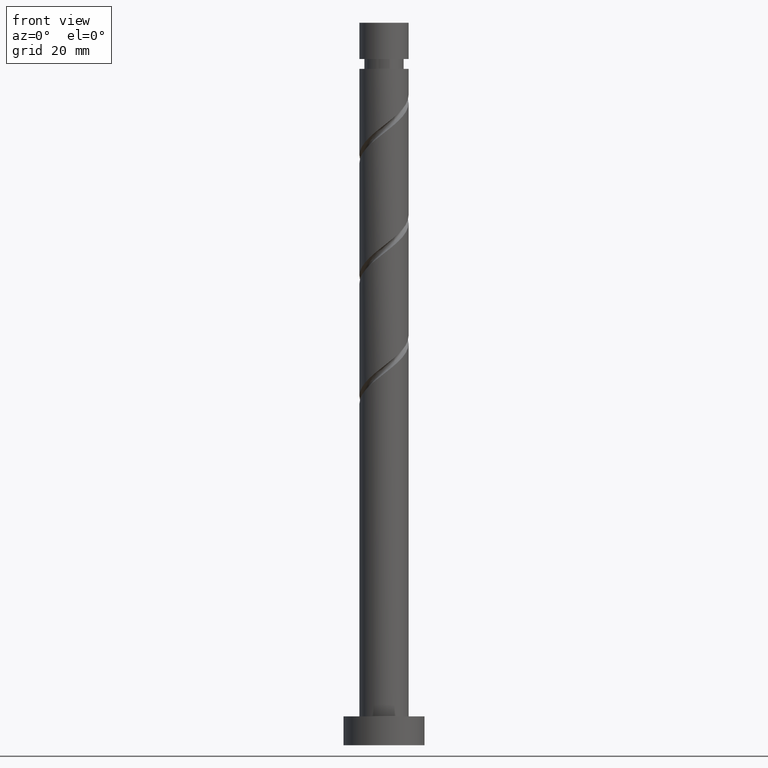
[diagram: clean part render]
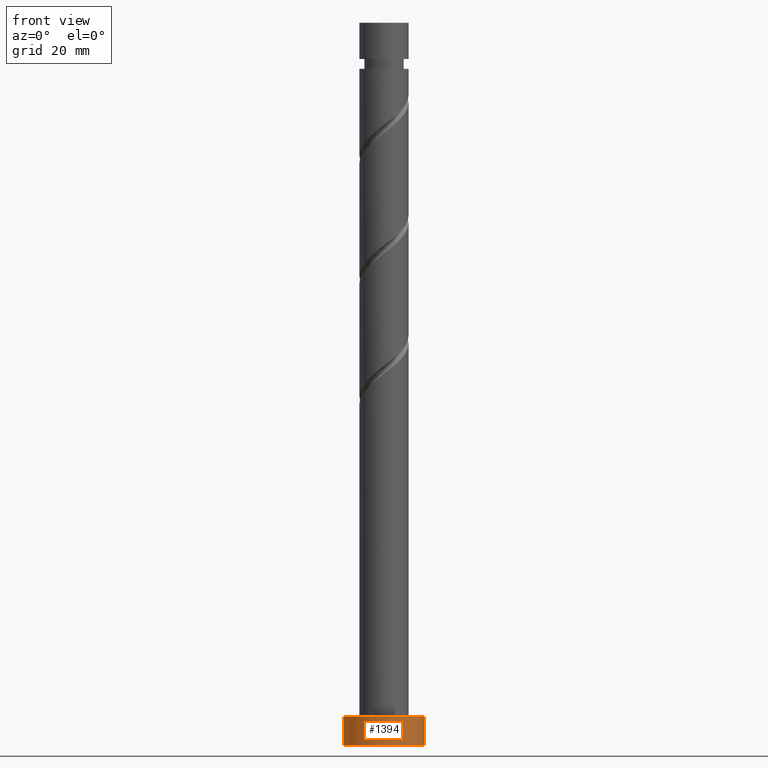
[diagram: same view with one face highlighted and labeled with its STEP entity id]
A machine part, front view. The second image highlights one B-rep face of the part: STEP entity #1394.
In plain terms, the highlighted cylindrical surface (partial cylindrical patch) has radius 7 mm, axis along (-0, -0, -1).
Its self-contained STEP definition (entity closure, byte-faithful):
#2 = VERTEX_POINT ( 'NONE', #667 ) ;
#4 = EDGE_CURVE ( 'NONE', #937, #2, #1185, .T. ) ;
#59 = CARTESIAN_POINT ( 'NONE',  ( 0.000000000000000000, 0.000000000000000000, 5.000000000000000000 ) ) ;
#82 = CIRCLE ( 'NONE', #1147, 7.000000000000000000 ) ;
#153 = DIRECTION ( 'NONE',  ( 1.000000000000000000, 0.000000000000000000, 0.000000000000000000 ) ) ;
#154 = DIRECTION ( 'NONE',  ( -0.000000000000000000, -0.000000000000000000, -1.000000000000000000 ) ) ;
#169 = CARTESIAN_POINT ( 'NONE',  ( -7.000000000000000000, 0.000000000000000000, 5.000000000000000000 ) ) ;
#174 = DIRECTION ( 'NONE',  ( -0.000000000000000000, -0.000000000000000000, -1.000000000000000000 ) ) ;
#280 = VECTOR ( 'NONE', #312, 1000.000000000000000 ) ;
#310 = ORIENTED_EDGE ( 'NONE', *, *, #986, .T. ) ;
#312 = DIRECTION ( 'NONE',  ( -0.000000000000000000, -0.000000000000000000, -1.000000000000000000 ) ) ;
#416 = DIRECTION ( 'NONE',  ( 0.000000000000000000, 0.000000000000000000, 1.000000000000000000 ) ) ;
#419 = CARTESIAN_POINT ( 'NONE',  ( 7.000000000000000000, 8.572527594031473190E-16, 0.000000000000000000 ) ) ;
#510 = EDGE_LOOP ( 'NONE', ( #1355, #1570, #310, #817 ) ) ;
#529 = FACE_OUTER_BOUND ( 'NONE', #510, .T. ) ;
#653 = DIRECTION ( 'NONE',  ( -1.000000000000000000, 0.000000000000000000, 0.000000000000000000 ) ) ;
#661 = CYLINDRICAL_SURFACE ( 'NONE', #918, 7.000000000000000000 ) ;
#667 = CARTESIAN_POINT ( 'NONE',  ( 7.000000000000000000, 8.572527594031473190E-16, 5.000000000000000000 ) ) ;
#717 = VECTOR ( 'NONE', #154, 1000.000000000000000 ) ;
#724 = DIRECTION ( 'NONE',  ( 1.000000000000000000, 0.000000000000000000, 0.000000000000000000 ) ) ;
#756 = LINE ( 'NONE', #1018, #717 ) ;
#780 = CARTESIAN_POINT ( 'NONE',  ( -7.000000000000000000, 0.000000000000000000, 0.000000000000000000 ) ) ;
#817 = ORIENTED_EDGE ( 'NONE', *, *, #1220, .T. ) ;
#865 = VERTEX_POINT ( 'NONE', #780 ) ;
#916 = LINE ( 'NONE', #1031, #280 ) ;
#918 = AXIS2_PLACEMENT_3D ( 'NONE', #59, #174, #653 ) ;
#937 = VERTEX_POINT ( 'NONE', #169 ) ;
#966 = DIRECTION ( 'NONE',  ( 0.000000000000000000, 0.000000000000000000, 1.000000000000000000 ) ) ;
#975 = CARTESIAN_POINT ( 'NONE',  ( 0.000000000000000000, 0.000000000000000000, 0.000000000000000000 ) ) ;
#986 = EDGE_CURVE ( 'NONE', #937, #865, #916, .T. ) ;
#1018 = CARTESIAN_POINT ( 'NONE',  ( 7.000000000000000000, 8.572527594031473190E-16, 5.000000000000000000 ) ) ;
#1031 = CARTESIAN_POINT ( 'NONE',  ( -7.000000000000000000, 0.000000000000000000, 5.000000000000000000 ) ) ;
#1080 = AXIS2_PLACEMENT_3D ( 'NONE', #1522, #416, #153 ) ;
#1147 = AXIS2_PLACEMENT_3D ( 'NONE', #975, #966, #724 ) ;
#1185 = CIRCLE ( 'NONE', #1080, 7.000000000000000000 ) ;
#1220 = EDGE_CURVE ( 'NONE', #865, #1552, #82, .T. ) ;
#1291 = EDGE_CURVE ( 'NONE', #2, #1552, #756, .T. ) ;
#1355 = ORIENTED_EDGE ( 'NONE', *, *, #1291, .F. ) ;
#1394 = ADVANCED_FACE ( 'NONE', ( #529 ), #661, .T. ) ;
#1522 = CARTESIAN_POINT ( 'NONE',  ( 0.000000000000000000, 0.000000000000000000, 5.000000000000000000 ) ) ;
#1552 = VERTEX_POINT ( 'NONE', #419 ) ;
#1570 = ORIENTED_EDGE ( 'NONE', *, *, #4, .F. ) ;